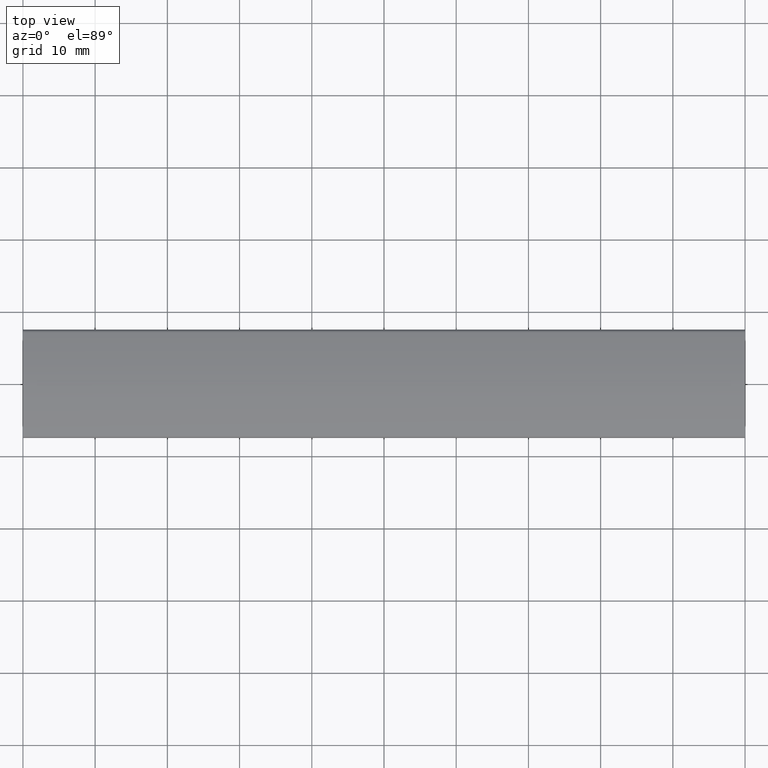
[diagram: clean part render]
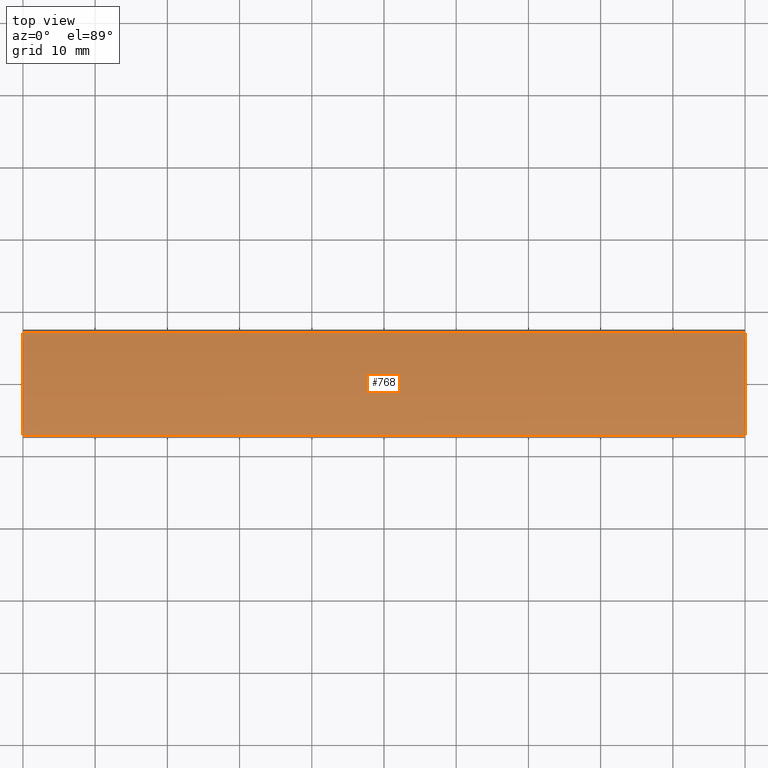
[diagram: same view with one face highlighted and labeled with its STEP entity id]
A machine part, top view. The second image highlights one B-rep face of the part: STEP entity #768.
In plain terms, the highlighted cylindrical surface (partial cylindrical patch) has radius 28.625 mm, axis along (-1, -0, 0).
Its self-contained STEP definition (entity closure, byte-faithful):
#201=CARTESIAN_POINT('',(100.0,7.124444444444454,1.448948320149363));
#202=VERTEX_POINT('',#201);
#210=CARTESIAN_POINT('',(100.0,-7.124444444444433,1.448948320149374));
#211=VERTEX_POINT('',#210);
#212=CARTESIAN_POINT('',(100.0,-1.065814E-014,-26.275281450180184));
#213=DIRECTION('',(1.0,6.123234E-017,-3.749399E-033));
#214=DIRECTION('',(6.123234E-017,-1.0,6.123234E-017));
#215=AXIS2_PLACEMENT_3D('',#212,#213,#214);
#216=CIRCLE('',#215,28.625000000000050);
#217=EDGE_CURVE('',#202,#211,#216,.T.);
#308=CARTESIAN_POINT('',(4.362464E-016,-7.124444444444439,1.448948320149374));
#309=VERTEX_POINT('',#308);
#317=CARTESIAN_POINT('',(-4.362464E-016,7.124444444444449,1.448948320149363));
#318=VERTEX_POINT('',#317);
#319=CARTESIAN_POINT('',(9.860761E-031,-1.687539E-014,-26.275281450180184));
#320=DIRECTION('',(1.0,6.123234E-017,-3.749399E-033));
#321=DIRECTION('',(6.123234E-017,-1.0,6.123234E-017));
#322=AXIS2_PLACEMENT_3D('',#319,#320,#321);
#323=CIRCLE('',#322,28.625000000000050);
#324=EDGE_CURVE('',#318,#309,#323,.T.);
#747=CARTESIAN_POINT('',(100.000000009999990,-1.073753E-014,-26.275281450180184));
#748=DIRECTION('',(-1.0,-6.123234E-017,3.749399E-033));
#749=DIRECTION('',(6.123234E-017,-1.0,6.123234E-017));
#750=AXIS2_PLACEMENT_3D('',#747,#748,#749);
#751=CYLINDRICAL_SURFACE('',#750,28.625000000000050);
#752=ORIENTED_EDGE('',*,*,#324,.T.);
#753=CARTESIAN_POINT('',(4.362464E-016,-7.124444444444439,1.448948320149374));
#754=DIRECTION('',(1.0,0.0,0.0));
#755=VECTOR('',#754,100.0);
#756=LINE('',#753,#755);
#757=EDGE_CURVE('',#309,#211,#756,.T.);
#758=ORIENTED_EDGE('',*,*,#757,.T.);
#759=ORIENTED_EDGE('',*,*,#217,.F.);
#760=CARTESIAN_POINT('',(100.0,7.124444444444454,1.448948320149366));
#761=DIRECTION('',(-1.0,0.0,0.0));
#762=VECTOR('',#761,100.0);
#763=LINE('',#760,#762);
#764=EDGE_CURVE('',#202,#318,#763,.T.);
#765=ORIENTED_EDGE('',*,*,#764,.T.);
#766=EDGE_LOOP('',(#752,#758,#759,#765));
#767=FACE_OUTER_BOUND('',#766,.T.);
#768=ADVANCED_FACE('',(#767),#751,.T.);